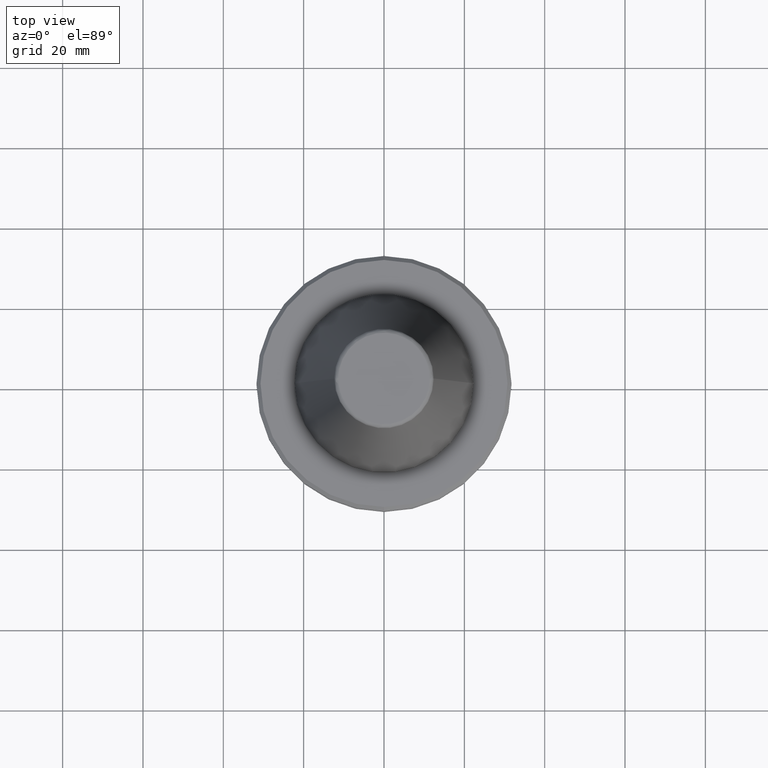
[diagram: clean part render]
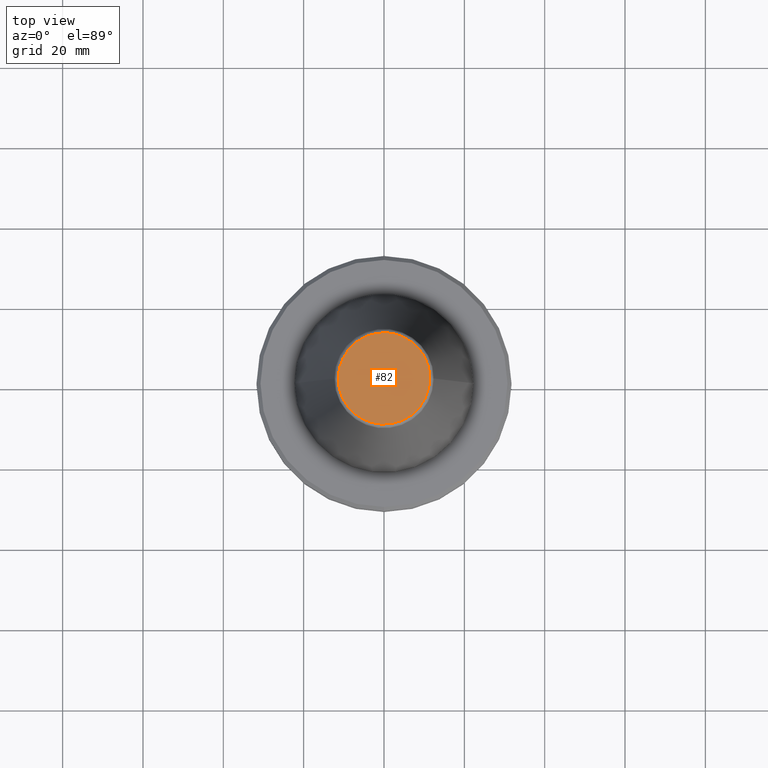
[diagram: same view with one face highlighted and labeled with its STEP entity id]
A machine part, top view. The second image highlights one B-rep face of the part: STEP entity #82.
In plain terms, the highlighted planar face has unit normal (0, 0, 1).
Its self-contained STEP definition (entity closure, byte-faithful):
#10 = CARTESIAN_POINT ( 'NONE',  ( 11.38516258736446900, -22.77032517488440200, 68.39999999971479400 ) ) ;
#82 = ADVANCED_FACE ( 'NONE', ( #328 ), #497, .T. ) ;
#328 = FACE_OUTER_BOUND ( 'NONE', #2346, .T. ) ;
#407 = DIRECTION ( 'NONE',  ( 0.0000000000000000000, 0.0000000000000000000, 1.000000000000000000 ) ) ;
#418 = AXIS2_PLACEMENT_3D ( 'NONE', #548, #407, #2280 ) ;
#497 = PLANE ( 'NONE',  #418 ) ;
#527 =( BOUNDED_CURVE ( )  B_SPLINE_CURVE ( 3, ( #2004, #853, #1062, #2328 ),
 .UNSPECIFIED., .F., .T. ) 
 B_SPLINE_CURVE_WITH_KNOTS ( ( 4, 4 ),
 ( 0.0000000000000000000, 1.000000000000000000 ),
 .UNSPECIFIED. ) 
 CURVE ( )  GEOMETRIC_REPRESENTATION_ITEM ( )  RATIONAL_B_SPLINE_CURVE ( ( 0.9606698264625278500, 0.3202232754875091200, 0.3202232754875091200, 0.9606698264625278500 ) ) 
 REPRESENTATION_ITEM ( '' )  );
#528 = EDGE_CURVE ( 'NONE', #1363, #1527, #1115, .T. ) ;
#548 = CARTESIAN_POINT ( 'NONE',  ( -11.52178454100000100, -11.52178454100000100, 68.40000000000000600 ) ) ;
#634 = CARTESIAN_POINT ( 'NONE',  ( -11.38516258736446900, -22.77032517488440200, 68.39999999971479400 ) ) ;
#853 = CARTESIAN_POINT ( 'NONE',  ( -11.38516258736446900, 22.77032517488440200, 68.39999999971480800 ) ) ;
#1062 = CARTESIAN_POINT ( 'NONE',  ( 11.38516258736446900, 22.77032517488440200, 68.39999999971480800 ) ) ;
#1115 =( BOUNDED_CURVE ( )  B_SPLINE_CURVE ( 3, ( #1612, #10, #634, #1250 ),
 .UNSPECIFIED., .F., .T. ) 
 B_SPLINE_CURVE_WITH_KNOTS ( ( 4, 4 ),
 ( 0.0000000000000000000, 1.000000000000000000 ),
 .UNSPECIFIED. ) 
 CURVE ( )  GEOMETRIC_REPRESENTATION_ITEM ( )  RATIONAL_B_SPLINE_CURVE ( ( 0.9606698264625276300, 0.3202232754875091200, 0.3202232754875091200, 0.9606698264625276300 ) ) 
 REPRESENTATION_ITEM ( '' )  );
#1149 = CARTESIAN_POINT ( 'NONE',  ( -11.38516258738788200, 0.0000000000000000000, 68.39999999982889300 ) ) ;
#1250 = CARTESIAN_POINT ( 'NONE',  ( -11.38516258738788200, 0.0000000000000000000, 68.39999999982889300 ) ) ;
#1363 = VERTEX_POINT ( 'NONE', #1721 ) ;
#1492 = ORIENTED_EDGE ( 'NONE', *, *, #528, .F. ) ;
#1527 = VERTEX_POINT ( 'NONE', #1149 ) ;
#1612 = CARTESIAN_POINT ( 'NONE',  ( 11.38516258738787800, 0.0000000000000000000, 68.39999999982889300 ) ) ;
#1721 = CARTESIAN_POINT ( 'NONE',  ( 11.38516258738787800, 0.0000000000000000000, 68.39999999982889300 ) ) ;
#2004 = CARTESIAN_POINT ( 'NONE',  ( -11.38516258738788200, 0.0000000000000000000, 68.39999999982889300 ) ) ;
#2050 = ORIENTED_EDGE ( 'NONE', *, *, #2148, .F. ) ;
#2148 = EDGE_CURVE ( 'NONE', #1527, #1363, #527, .T. ) ;
#2280 = DIRECTION ( 'NONE',  ( 1.000000000000000000, 0.0000000000000000000, -0.0000000000000000000 ) ) ;
#2328 = CARTESIAN_POINT ( 'NONE',  ( 11.38516258738787800, 0.0000000000000000000, 68.39999999982889300 ) ) ;
#2346 = EDGE_LOOP ( 'NONE', ( #2050, #1492 ) ) ;